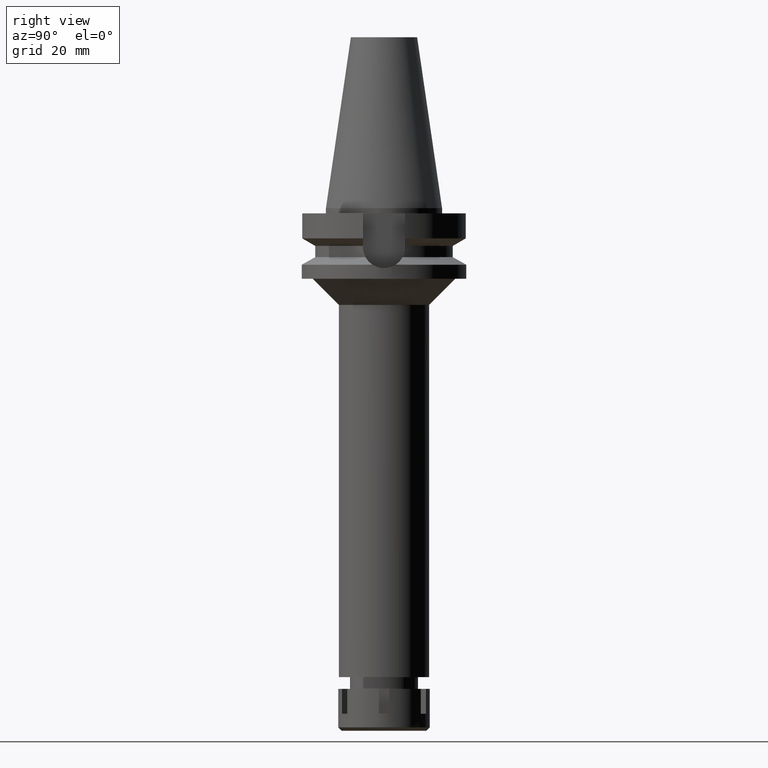
[diagram: clean part render]
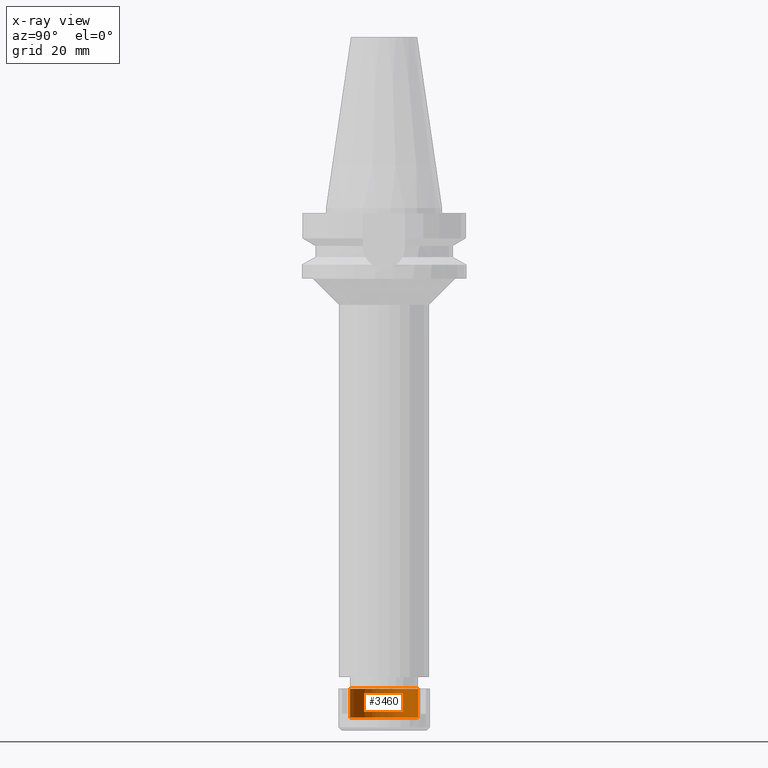
[diagram: x-ray — body ghosted, one internal face saturated and labeled with its STEP entity id]
A machine part, right view, then the same camera in x-ray: the body is ghosted and one INTERNAL B-rep face — a face not visible from any outside direction — is saturated and labeled: STEP entity #3460.
In plain terms, the highlighted cylindrical surface (edge-blend (fillet) strip) has radius 13 mm, axis along (0, 0, -1).
Its self-contained STEP definition (entity closure, byte-faithful):
#7 = LINE ( 'NONE', #556, #1481 ) ;
#81 = EDGE_LOOP ( 'NONE', ( #2835, #2112, #1933, #436 ) ) ;
#285 = CARTESIAN_POINT ( 'NONE',  ( 0.0000000000000000000, 13.00000000000000000, -11.00000000000000000 ) ) ;
#347 = VERTEX_POINT ( 'NONE', #1340 ) ;
#376 = DIRECTION ( 'NONE',  ( 0.0000000000000000000, 1.000000000000000000, 0.0000000000000000000 ) ) ;
#436 = ORIENTED_EDGE ( 'NONE', *, *, #3356, .T. ) ;
#556 = CARTESIAN_POINT ( 'NONE',  ( 0.0000000000000000000, -13.00000000000000000, -11.00000000000000000 ) ) ;
#656 = CARTESIAN_POINT ( 'NONE',  ( 0.0000000000000000000, 0.0000000000000000000, 0.0000000000000000000 ) ) ;
#718 = VERTEX_POINT ( 'NONE', #725 ) ;
#725 = CARTESIAN_POINT ( 'NONE',  ( 0.0000000000000000000, 13.00000000000000000, 0.0000000000000000000 ) ) ;
#797 = CYLINDRICAL_SURFACE ( 'NONE', #1952, 13.00000000000000000 ) ;
#1024 = LINE ( 'NONE', #3311, #2128 ) ;
#1253 = CIRCLE ( 'NONE', #3472, 13.00000000000000000 ) ;
#1340 = CARTESIAN_POINT ( 'NONE',  ( 0.0000000000000000000, -13.00000000000000000, 0.0000000000000000000 ) ) ;
#1354 = FACE_OUTER_BOUND ( 'NONE', #81, .T. ) ;
#1481 = VECTOR ( 'NONE', #3327, 1000.000000000000000 ) ;
#1569 = DIRECTION ( 'NONE',  ( 0.0000000000000000000, 0.0000000000000000000, -1.000000000000000000 ) ) ;
#1642 = AXIS2_PLACEMENT_3D ( 'NONE', #656, #2903, #376 ) ;
#1834 = EDGE_CURVE ( 'NONE', #718, #347, #3340, .T. ) ;
#1883 = DIRECTION ( 'NONE',  ( 0.0000000000000000000, -1.000000000000000000, 0.0000000000000000000 ) ) ;
#1933 = ORIENTED_EDGE ( 'NONE', *, *, #3325, .T. ) ;
#1952 = AXIS2_PLACEMENT_3D ( 'NONE', #2987, #2395, #3509 ) ;
#2112 = ORIENTED_EDGE ( 'NONE', *, *, #3547, .F. ) ;
#2128 = VECTOR ( 'NONE', #2694, 1000.000000000000000 ) ;
#2177 = CARTESIAN_POINT ( 'NONE',  ( 0.0000000000000000000, -13.00000000000000000, -11.00000000000000000 ) ) ;
#2395 = DIRECTION ( 'NONE',  ( 0.0000000000000000000, 0.0000000000000000000, -1.000000000000000000 ) ) ;
#2501 = VERTEX_POINT ( 'NONE', #285 ) ;
#2694 = DIRECTION ( 'NONE',  ( 0.0000000000000000000, 0.0000000000000000000, 1.000000000000000000 ) ) ;
#2835 = ORIENTED_EDGE ( 'NONE', *, *, #1834, .T. ) ;
#2903 = DIRECTION ( 'NONE',  ( 0.0000000000000000000, 0.0000000000000000000, 1.000000000000000000 ) ) ;
#2987 = CARTESIAN_POINT ( 'NONE',  ( 0.0000000000000000000, 0.0000000000000000000, 0.0000000000000000000 ) ) ;
#3311 = CARTESIAN_POINT ( 'NONE',  ( 0.0000000000000000000, 13.00000000000000000, -11.00000000000000000 ) ) ;
#3325 = EDGE_CURVE ( 'NONE', #3419, #2501, #1253, .T. ) ;
#3327 = DIRECTION ( 'NONE',  ( 0.0000000000000000000, 0.0000000000000000000, 1.000000000000000000 ) ) ;
#3340 = CIRCLE ( 'NONE', #1642, 13.00000000000000000 ) ;
#3356 = EDGE_CURVE ( 'NONE', #2501, #718, #1024, .T. ) ;
#3419 = VERTEX_POINT ( 'NONE', #2177 ) ;
#3460 = ADVANCED_FACE ( 'NONE', ( #1354 ), #797, .F. ) ;
#3472 = AXIS2_PLACEMENT_3D ( 'NONE', #3534, #1569, #1883 ) ;
#3509 = DIRECTION ( 'NONE',  ( 0.0000000000000000000, -1.000000000000000000, 0.0000000000000000000 ) ) ;
#3534 = CARTESIAN_POINT ( 'NONE',  ( 0.0000000000000000000, 0.0000000000000000000, -11.00000000000000000 ) ) ;
#3547 = EDGE_CURVE ( 'NONE', #3419, #347, #7, .T. ) ;